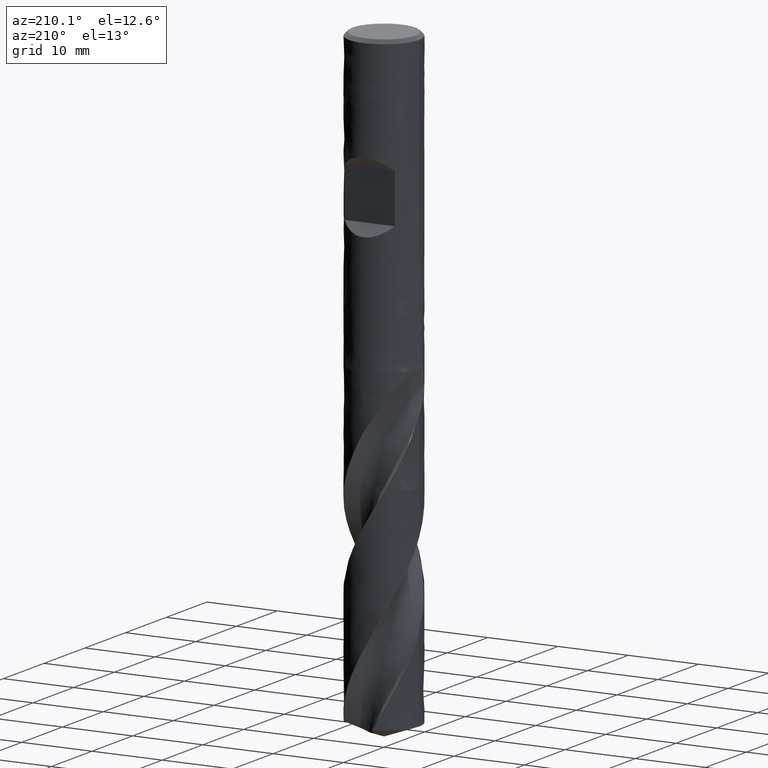
[diagram: clean part render]
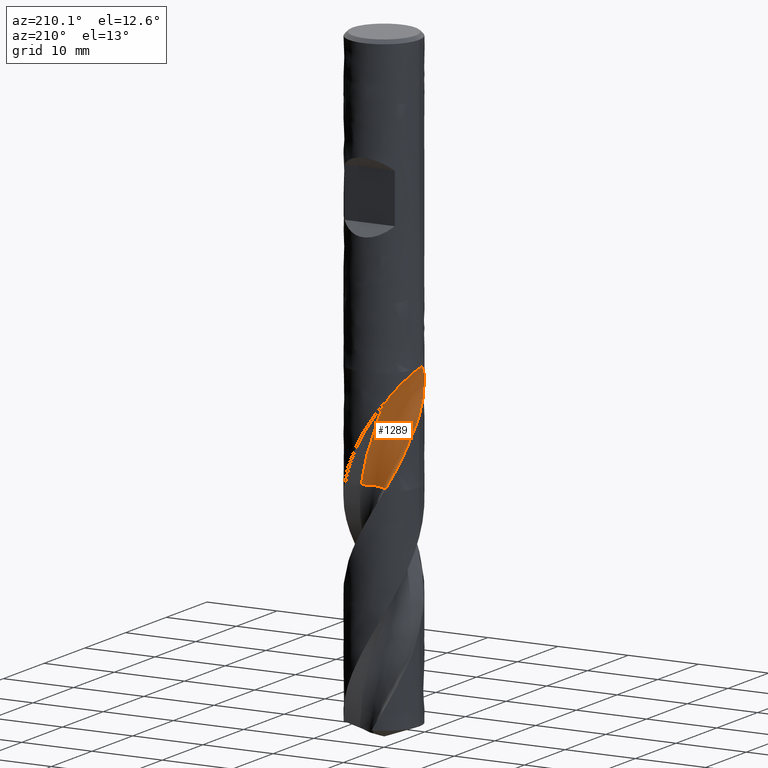
[diagram: same view with one face highlighted and labeled with its STEP entity id]
A machine part, auxiliary view. The second image highlights one B-rep face of the part: STEP entity #1289.
In plain terms, the highlighted face is a freeform B-spline surface patch.
Its self-contained STEP definition (entity closure, byte-faithful):
#1018 = EDGE_CURVE('', #1019, #1021, #1023, .T.);
#1019 = VERTEX_POINT('', #1020);
#1020 = CARTESIAN_POINT('', (-5., 2.87759123992862E-15, -41.9946312999325));
#1021 = VERTEX_POINT('', #1022);
#1022 = CARTESIAN_POINT('', (-4.99978048467422, 0.0468519484205006, -42.));
#1023 = CIRCLE('', #1024, 2.4787195018312);
#1024 = AXIS2_PLACEMENT_3D('', #1025, #1026, #1027);
#1025 = CARTESIAN_POINT('', (-3.78794759560581, -0.228330847429171, -44.144711355));
#1026 = DIRECTION('', (-0.872293151663816, -0.0516337401723768, -0.486249539265816));
#1027 = DIRECTION('', (-0.488983289639784, 0.0921164534614016, 0.867415645152166));
#1037 = EDGE_CURVE('', #1038, #1019, #1040, .T.);
#1038 = VERTEX_POINT('', #1039);
#1039 = CARTESIAN_POINT('', (-4.99295026095447, -0.265419840318413, -41.98));
#1040 = B_SPLINE_CURVE_WITH_KNOTS('', 3, (#1041, #1042, #1043, #1044, #1045, #1046, #1047), .UNSPECIFIED., .F., .U., (4, 3, 4), (0., 0.19653926357197, 0.266002509035877), .UNSPECIFIED.);
#1041 = CARTESIAN_POINT('', (-4.99295026095794, -0.265419840253592, -41.98));
#1042 = CARTESIAN_POINT('', (-4.9964279541477, -0.199999150139689, -41.9800602967663));
#1043 = CARTESIAN_POINT('', (-4.99861839882731, -0.134456077698584, -41.9829137811978));
#1044 = CARTESIAN_POINT('', (-4.99952166023377, -0.0691604572956124, -41.988170277714));
#1045 = CARTESIAN_POINT('', (-4.99984090162939, -0.0460829020766838, -41.9900280912681));
#1046 = CARTESIAN_POINT('', (-5., -0.0230250404152947, -41.9921870300973));
#1047 = CARTESIAN_POINT('', (-5., 2.48901318130981E-15, -41.9946312999325));
#1049 = EDGE_CURVE('', #1050, #1038, #1052, .T.);
#1050 = VERTEX_POINT('', #1051);
#1051 = CARTESIAN_POINT('', (-4.99272354253618, -0.269650936962821, -41.98));
#1052 = LINE('', #1053, #1054);
#1053 = CARTESIAN_POINT('', (-4.99272354253619, -0.269650936962821, -41.98));
#1054 = VECTOR('', #1055, 0.00423716651260086);
#1055 = DIRECTION('', (-0.00022671841828803, 0.00423109664440735, 0.));
#1057 = EDGE_CURVE('', #1050, #1058, #1060, .T.);
#1058 = VERTEX_POINT('', #1059);
#1059 = CARTESIAN_POINT('', (-4.96875036548665, -0.558139593180982, -42.));
#1060 = B_SPLINE_CURVE_WITH_KNOTS('', 3, (#1061, #1062, #1063, #1064, #1065, #1066, #1067), .UNSPECIFIED., .F., .U., (4, 3, 4), (0., 0.197902945999934, 0.290360140675007), .UNSPECIFIED.);
#1061 = CARTESIAN_POINT('', (-4.99272354253639, -0.269650936958994, -41.98));
#1062 = CARTESIAN_POINT('', (-4.98916589639201, -0.335522555509147, -41.9800607791115));
#1063 = CARTESIAN_POINT('', (-4.98429330861785, -0.401414698641258, -41.9829655562432));
#1064 = CARTESIAN_POINT('', (-4.97816157685433, -0.466805435627285, -41.9891448808512));
#1065 = CARTESIAN_POINT('', (-4.97529692663656, -0.497354976307015, -41.9920317657096));
#1066 = CARTESIAN_POINT('', (-4.97215596392127, -0.527821786178231, -41.9956356857761));
#1067 = CARTESIAN_POINT('', (-4.96875036548666, -0.558139593180976, -42.));
#1117 = VERTEX_POINT('', #1118);
#1118 = CARTESIAN_POINT('', (1.943946066787, 2.27613531000841, -57.));
#1124 = EDGE_CURVE('', #1117, #1125, #1127, .T.);
#1125 = VERTEX_POINT('', #1126);
#1126 = CARTESIAN_POINT('', (-3.11223655636923, 3.91330852568501, -44.9355207943384));
#1127 = (
   BOUNDED_CURVE ()
   B_SPLINE_CURVE (3, (#1128, #1129, #1130, #1131, #1132, #1133, #1134, #1135, #1136, #1137, #1138, #1139, #1140, #1141, #1142, #1143, #1144), .UNSPECIFIED., .F., .U.)
   B_SPLINE_CURVE_WITH_KNOTS ((4, 1, 1, 1, 1, 1, 1, 1, 1, 1, 1, 1, 1, 1, 4), (32.05, 32.3029411764706, 33.2258823529412, 34.1488235294118, 35.0717647058824, 35.9947058823529, 36.9176470588235, 37.8405882352941, 38.7635294117647, 39.6864705882353, 40.6094117647059, 41.5323529411765, 42.4552941176471, 43.3782352941177, 44.1144792056616), .UNSPECIFIED.)
   CURVE ()
   GEOMETRIC_REPRESENTATION_ITEM ()
   RATIONAL_B_SPLINE_CURVE ((1., 1., 1., 1., 1., 1., 1., 1., 1., 1., 1., 1., 1., 1., 1., 1., 1.))
   REPRESENTATION_ITEM ('')
);
#1128 = CARTESIAN_POINT('', (1.943946066787, 2.27613531000841, -57.));
#1129 = CARTESIAN_POINT('', (1.9224727124602, 2.2954026003362, -56.9156862745098));
#1130 = CARTESIAN_POINT('', (1.82133720913226, 2.38359132869679, -56.5237254901961));
#1131 = CARTESIAN_POINT('', (1.63028051500209, 2.52925399027171, -55.8241176470588));
#1132 = CARTESIAN_POINT('', (1.35856619870111, 2.69368816240262, -54.9011764705882));
#1133 = CARTESIAN_POINT('', (1.07153814504677, 2.83299067454781, -53.9782352941176));
#1134 = CARTESIAN_POINT('', (0.765589005447515, 2.92656808357513, -53.0552941176471));
#1135 = CARTESIAN_POINT('', (0.448979732801686, 2.96633694669324, -52.1323529411765));
#1136 = CARTESIAN_POINT('', (0.130692686243205, 2.95205794351342, -51.2094117647059));
#1137 = CARTESIAN_POINT('', (-0.174656198491371, 2.8856965353033, -50.2864705882353));
#1138 = CARTESIAN_POINT('', (-0.485176705606742, 2.92884247035536, -49.3635294117647));
#1139 = CARTESIAN_POINT('', (-0.838625774743411, 3.04763573265598, -48.4405882352941));
#1140 = CARTESIAN_POINT('', (-1.26617539191939, 3.23570710944644, -47.5176470588235));
#1141 = CARTESIAN_POINT('', (-1.79708044128408, 3.47032271734997, -46.5947058823529));
#1142 = CARTESIAN_POINT('', (-2.41141634031044, 3.70769795879561, -45.7339971275245));
#1143 = CARTESIAN_POINT('', (-2.88531623885215, 3.85325129579923, -45.1809354315197));
#1144 = CARTESIAN_POINT('', (-3.11223655636923, 3.91330852568501, -44.9355207943384));
#1289 = ADVANCED_FACE('', (#1290), #1607, .T.);
#1290 = FACE_OUTER_BOUND('', #1291, .T.);
#1291 = EDGE_LOOP('', (#1292, #1361, #1406, #1417, #1441, #1547, #1548, #1549, #1550, #1551, #1606));
#1292 = ORIENTED_EDGE('', *, *, #1293, .T.);
#1293 = EDGE_CURVE('', #1117, #1294, #1296, .T.);
#1294 = VERTEX_POINT('', #1295);
#1295 = CARTESIAN_POINT('', (-2.49888504584087, 4.33077054664328, -57.));
#1296 = B_SPLINE_CURVE_WITH_KNOTS('', 3, (#1297, #1298, #1299, #1300, #1301, #1302, #1303, #1304, #1305, #1306, #1307, #1308, #1309, #1310, #1311, #1312, #1313, #1314, #1315, #1316, #1317, #1318, #1319, #1320, #1321, #1322, #1323, #1324, #1325, #1326, #1327, #1328, #1329, #1330, #1331, #1332, #1333, #1334, #1335, #1336, #1337, #1338, #1339, #1340, #1341, #1342, #1343, #1344, #1345, #1346, #1347, #1348, #1349, #1350, #1351, #1352, #1353, #1354, #1355, #1356, #1357, #1358, #1359, #1360), .UNSPECIFIED., .F., .U., (4, 3, 3, 3, 3, 3, 3, 3, 3, 3, 3, 3, 3, 3, 3, 3, 3, 3, 3, 3, 3, 4), (0., 0.297376150028493, 0.594367108387545, 0.890982575190988, 1.18723009705755, 1.4831152333444, 1.77864167663977, 2.07381133312168, 2.36862436647171, 2.66307920740673, 2.8594675544147, 2.89837695632703, 3.1957271529752, 3.49269287368801, 3.78928366924074, 4.08550694952865, 4.38136814654139, 4.67687083203684, 4.97201679538179, 5.26680608513294, 5.56123701631977, 5.72273616709629), .UNSPECIFIED.);
#1297 = CARTESIAN_POINT('', (1.94394606678699, 2.27613531000841, -57.));
#1298 = CARTESIAN_POINT('', (1.85797356150517, 2.22679394847034, -57.));
#1299 = CARTESIAN_POINT('', (1.76944407261665, 2.18166372748891, -57.));
#1300 = CARTESIAN_POINT('', (1.67900884839017, 2.14107663789172, -57.));
#1301 = CARTESIAN_POINT('', (1.58869076501374, 2.1005421207984, -57.));
#1302 = CARTESIAN_POINT('', (1.49625085524377, 2.06443974368902, -57.));
#1303 = CARTESIAN_POINT('', (1.40236737624665, 2.03303439968234, -57.));
#1304 = CARTESIAN_POINT('', (1.30860259599298, 2.00166876207461, -57.));
#1305 = CARTESIAN_POINT('', (1.21316901361972, 1.97491169215684, -57.));
#1306 = CARTESIAN_POINT('', (1.11676508544159, 1.9529590187346, -57.));
#1307 = CARTESIAN_POINT('', (1.02048074420762, 1.931033577119, -57.));
#1308 = CARTESIAN_POINT('', (0.922994013113576, 1.9138472016576, -57.));
#1309 = CARTESIAN_POINT('', (0.825016609200674, 1.90152536415722, -57.));
#1310 = CARTESIAN_POINT('', (0.727159056411223, 1.88921859937779, -57.));
#1311 = CARTESIAN_POINT('', (0.628574330360891, 1.88173455580945, -57.));
#1312 = CARTESIAN_POINT('', (0.529980407622535, 1.87912773852789, -57.));
#1313 = CARTESIAN_POINT('', (0.431506007444631, 1.8765240814155, -57.));
#1314 = CARTESIAN_POINT('', (0.332783811336121, 1.87877949493969, -57.));
#1315 = CARTESIAN_POINT('', (0.234531058069737, 1.88587759301818, -57.));
#1316 = CARTESIAN_POINT('', (0.136396924600488, 1.89296712161718, -57.));
#1317 = CARTESIAN_POINT('', (0.0384938747297058, 1.90490475831692, -57.));
#1318 = CARTESIAN_POINT('', (-0.0584685173683535, 1.92160398243478, -57.));
#1319 = CARTESIAN_POINT('', (-0.155313759782545, 1.93828303059799, -57.));
#1320 = CARTESIAN_POINT('', (-0.25145416530008, 1.95975236130513, -57.));
#1321 = CARTESIAN_POINT('', (-0.346194614588102, 1.98585674589082, -57.));
#1322 = CARTESIAN_POINT('', (-0.440819955972163, 2.01192941412921, -57.));
#1323 = CARTESIAN_POINT('', (-0.534276387144739, 2.0426885754329, -57.));
#1324 = CARTESIAN_POINT('', (-0.625889832586888, 2.07791237243631, -57.));
#1325 = CARTESIAN_POINT('', (-0.686991946095894, 2.10140508611314, -57.));
#1326 = CARTESIAN_POINT('', (-0.747356968906936, 2.12691253730669, -57.));
#1327 = CARTESIAN_POINT('', (-0.806791029678776, 2.1543528050047, -57.));
#1328 = CARTESIAN_POINT('', (-0.81856639106394, 2.15978940254579, -57.));
#1329 = CARTESIAN_POINT('', (-0.830306741690077, 2.16530248202444, -57.));
#1330 = CARTESIAN_POINT('', (-0.842010600328535, 2.17089134787952, -57.));
#1331 = CARTESIAN_POINT('', (-0.931452855841193, 2.21360211389931, -57.));
#1332 = CARTESIAN_POINT('', (-1.01888280849404, 2.260808879436, -57.));
#1333 = CARTESIAN_POINT('', (-1.10365741057346, 2.3121644385067, -57.));
#1334 = CARTESIAN_POINT('', (-1.18832239848483, 2.36345359447146, -57.));
#1335 = CARTESIAN_POINT('', (-1.27054608158548, 2.41900629519376, -57.));
#1336 = CARTESIAN_POINT('', (-1.34972526432922, 2.47841500429976, -57.));
#1337 = CARTESIAN_POINT('', (-1.4288044817716, 2.53774870872267, -57.));
#1338 = CARTESIAN_POINT('', (-1.50503990875809, 2.60107348302777, -57.));
#1339 = CARTESIAN_POINT('', (-1.57787368847481, 2.66792594479263, -57.));
#1340 = CARTESIAN_POINT('', (-1.65061721749514, 2.73469556750598, -57.));
#1341 = CARTESIAN_POINT('', (-1.7201446487521, 2.80514667902639, -57.));
#1342 = CARTESIAN_POINT('', (-1.78594846933808, 2.8787650240764, -57.));
#1343 = CARTESIAN_POINT('', (-1.85167185579055, 2.95229338304746, -57.));
#1344 = CARTESIAN_POINT('', (-1.913840372072, 3.02915979542361, -57.));
#1345 = CARTESIAN_POINT('', (-1.97200132808736, 3.10880454600478, -57.));
#1346 = CARTESIAN_POINT('', (-2.03009180722775, 3.18835278659862, -57.));
#1347 = CARTESIAN_POINT('', (-2.08432519739078, 3.27086534887041, -57.));
#1348 = CARTESIAN_POINT('', (-2.13430754413501, 3.35574285685854, -57.));
#1349 = CARTESIAN_POINT('', (-2.18422955366035, 3.44051790321548, -57.));
#1350 = CARTESIAN_POINT('', (-2.23003146101638, 3.52785707251577, -57.));
#1351 = CARTESIAN_POINT('', (-2.27138135986519, 3.6171274560988, -57.));
#1352 = CARTESIAN_POINT('', (-2.31268128880468, 3.70628995953951, -57.));
#1353 = CARTESIAN_POINT('', (-2.34963956826356, 3.79759398341439, -57.));
#1354 = CARTESIAN_POINT('', (-2.38198902354078, 3.89037948278519, -57.));
#1355 = CARTESIAN_POINT('', (-2.4142991534261, 3.98305218810443, -57.));
#1356 = CARTESIAN_POINT('', (-2.44208939980682, 4.07742566514548, -57.));
#1357 = CARTESIAN_POINT('', (-2.46515935177571, 4.17281933433032, -57.));
#1358 = CARTESIAN_POINT('', (-2.47781351700357, 4.22514398819976, -57.));
#1359 = CARTESIAN_POINT('', (-2.48906530015115, 4.27784068838955, -57.));
#1360 = CARTESIAN_POINT('', (-2.49888504584086, 4.33077054664328, -57.));
#1361 = ORIENTED_EDGE('', *, *, #1362, .F.);
#1362 = EDGE_CURVE('', #1363, #1294, #1365, .T.);
#1363 = VERTEX_POINT('', #1364);
#1364 = CARTESIAN_POINT('', (-4.50780912676407, 2.16325145941534, -51.7296097801275));
#1365 = B_SPLINE_CURVE_WITH_KNOTS('', 3, (#1366, #1367, #1368, #1369, #1370, #1371, #1372, #1373, #1374, #1375, #1376, #1377, #1378, #1379, #1380, #1381, #1382, #1383, #1384, #1385, #1386, #1387, #1388, #1389, #1390, #1391, #1392, #1393, #1394, #1395, #1396, #1397, #1398, #1399, #1400, #1401, #1402, #1403, #1404, #1405), .UNSPECIFIED., .F., .U., (4, 3, 3, 3, 3, 3, 3, 3, 3, 3, 3, 3, 3, 4), (0., 0.443538132250709, 1.10877140988273, 1.5522265696646, 1.99566824933686, 2.43907652097612, 2.63613322609805, 3.07951469221298, 3.52290078920543, 3.71995041273082, 4.38489248373351, 4.82818440142817, 5.82515596379439, 6.06441392951672), .UNSPECIFIED.);
#1366 = CARTESIAN_POINT('', (-4.50780912676406, 2.16325145941536, -51.7296097801276));
#1367 = CARTESIAN_POINT('', (-4.47728715469652, 2.22685350792159, -51.8595391509337));
#1368 = CARTESIAN_POINT('', (-4.44526179943292, 2.29013382638888, -51.9892820820056));
#1369 = CARTESIAN_POINT('', (-4.41176936778985, 2.35293243537327, -52.1188700617083));
#1370 = CARTESIAN_POINT('', (-4.36153630222517, 2.44711988273755, -52.3132304339312));
#1371 = CARTESIAN_POINT('', (-4.30799600455277, 2.54024081010484, -52.5072855114029));
#1372 = CARTESIAN_POINT('', (-4.25117125581793, 2.63202259749178, -52.7009802243998));
#1373 = CARTESIAN_POINT('', (-4.21329096798947, 2.69320580729094, -52.8301002230365));
#1374 = CARTESIAN_POINT('', (-4.17394560455745, 2.75380393083671, -52.959077687096));
#1375 = CARTESIAN_POINT('', (-4.1331395218874, 2.81374442560316, -53.0878886964062));
#1376 = CARTESIAN_POINT('', (-4.09233467963693, 2.87368309830391, -53.2166957901311));
#1377 = CARTESIAN_POINT('', (-4.05006540648035, 2.93296824575027, -53.3453532858913));
#1378 = CARTESIAN_POINT('', (-4.00637533614076, 2.99148068119507, -53.4738695093111));
#1379 = CARTESIAN_POINT('', (-3.96268855732603, 3.04998870842688, -53.6023760505689));
#1380 = CARTESIAN_POINT('', (-3.91757592489738, 3.10773105487844, -53.7307568283362));
#1381 = CARTESIAN_POINT('', (-3.87109441753695, 3.16458970650454, -53.8590230290617));
#1382 = CARTESIAN_POINT('', (-3.85043739944461, 3.18985846954698, -53.9160262843235));
#1383 = CARTESIAN_POINT('', (-3.82950946897326, 3.21495364979099, -53.9730092279596));
#1384 = CARTESIAN_POINT('', (-3.80831625944781, 3.2398653163404, -54.0299728183692));
#1385 = CARTESIAN_POINT('', (-3.76063112077027, 3.29591705652966, -54.1581420182721));
#1386 = CARTESIAN_POINT('', (-3.71159436807, 3.3510480939713, -54.286221496742));
#1387 = CARTESIAN_POINT('', (-3.66129008778324, 3.40513654544135, -54.4142329518352));
#1388 = CARTESIAN_POINT('', (-3.61098528209571, 3.45922556183577, -54.5422457439383));
#1389 = CARTESIAN_POINT('', (-3.55940624068417, 3.51227798560213, -54.6702062819506));
#1390 = CARTESIAN_POINT('', (-3.50668851434368, 3.56414585326838, -54.79816735316));
#1391 = CARTESIAN_POINT('', (-3.48325970545911, 3.5871969680102, -54.8550358050098));
#1392 = CARTESIAN_POINT('', (-3.4596068905287, 3.6100137412094, -54.9119078816351));
#1393 = CARTESIAN_POINT('', (-3.43574161781926, 3.63258579190977, -54.9687870085453));
#1394 = CARTESIAN_POINT('', (-3.35520848318774, 3.7087549612335, -55.1607250786003));
#1395 = CARTESIAN_POINT('', (-3.27222864866353, 3.78216450503793, -55.3527668452792));
#1396 = CARTESIAN_POINT('', (-3.18694996933047, 3.85270682676279, -55.5448055876266));
#1397 = CARTESIAN_POINT('', (-3.13009787506756, 3.89973474459161, -55.6728306082701));
#1398 = CARTESIAN_POINT('', (-3.07221197704725, 3.94549848442978, -55.8008713394425));
#1399 = CARTESIAN_POINT('', (-3.0133293322908, 3.98996821229893, -55.9288927010892));
#1400 = CARTESIAN_POINT('', (-2.88090119634736, 4.08998143677247, -56.2168150652076));
#1401 = CARTESIAN_POINT('', (-2.74338812163385, 4.1834635258339, -56.5047856891781));
#1402 = CARTESIAN_POINT('', (-2.60165714937276, 4.26982201937242, -56.7926983254312));
#1403 = CARTESIAN_POINT('', (-2.56764387819926, 4.29054674038435, -56.8617929658964));
#1404 = CARTESIAN_POINT('', (-2.53337905418993, 4.31086726137193, -56.9309021806323));
#1405 = CARTESIAN_POINT('', (-2.49888504584087, 4.33077054664328, -57.));
#1406 = ORIENTED_EDGE('', *, *, #1407, .T.);
#1407 = EDGE_CURVE('', #1363, #1408, #1410, .T.);
#1408 = VERTEX_POINT('', #1409);
#1409 = CARTESIAN_POINT('', (-4.91576224831516, 0.913937370961217, -49.4225273780345));
#1410 = B_SPLINE_CURVE_WITH_KNOTS('', 3, (#1411, #1412, #1413, #1414, #1415, #1416), .UNSPECIFIED., .F., .U., (4, 1, 1, 4), (37.3203902198726, 37.8405882352941, 38.7635294117647, 39.6274726219655), .UNSPECIFIED.);
#1411 = CARTESIAN_POINT('', (-4.50780912676409, 2.16325145941525, -51.7296097801274));
#1412 = CARTESIAN_POINT('', (-4.53828612816253, 2.06788350924136, -51.5562104416535));
#1413 = CARTESIAN_POINT('', (-4.61007503793983, 1.79998907979213, -51.0751640443562));
#1414 = CARTESIAN_POINT('', (-4.66635569368079, 1.36588307517593, -50.3061365769919));
#1415 = CARTESIAN_POINT('', (-4.82009380267054, 1.06321777797297, -49.7105084481014));
#1416 = CARTESIAN_POINT('', (-4.91576224831516, 0.913937370961217, -49.4225273780345));
#1417 = ORIENTED_EDGE('', *, *, #1418, .T.);
#1418 = EDGE_CURVE('', #1408, #1419, #1421, .T.);
#1419 = VERTEX_POINT('', #1420);
#1420 = CARTESIAN_POINT('', (-5., 3.24936843576135E-15, -48.0662136711367));
#1421 = B_SPLINE_CURVE_WITH_KNOTS('', 3, (#1422, #1423, #1424, #1425, #1426, #1427, #1428, #1429, #1430, #1431, #1432, #1433, #1434, #1435, #1436, #1437, #1438, #1439, #1440), .UNSPECIFIED., .F., .U., (4, 3, 3, 3, 3, 3, 4), (0., 0.295344221535339, 0.590609700820742, 0.885783969001286, 1.18085766597472, 1.47582557977458, 1.63840001026281), .UNSPECIFIED.);
#1422 = CARTESIAN_POINT('', (-4.91576224831516, 0.913937370961214, -49.4225273780345));
#1423 = CARTESIAN_POINT('', (-4.92561953914816, 0.860918313324287, -49.3401633289078));
#1424 = CARTESIAN_POINT('', (-4.93470176601981, 0.807287581822046, -49.2580943885015));
#1425 = CARTESIAN_POINT('', (-4.94294531353319, 0.75318764422969, -49.1762575757537));
#1426 = CARTESIAN_POINT('', (-4.95118666321966, 0.699102130318236, -49.0944425816647));
#1427 = CARTESIAN_POINT('', (-4.95859046979684, 0.644542575813345, -49.012851079877));
#1428 = CARTESIAN_POINT('', (-4.9651083648658, 0.589660008089094, -48.9314122886201));
#1429 = CARTESIAN_POINT('', (-4.97162424647755, 0.534794394258849, -48.8499986547983));
#1430 = CARTESIAN_POINT('', (-4.97725530847013, 0.479600895338787, -48.7687298678894));
#1431 = CARTESIAN_POINT('', (-4.98196981638965, 0.424236665772803, -48.6875298213017));
#1432 = CARTESIAN_POINT('', (-4.98668271799112, 0.368891299800291, -48.6063574410371));
#1433 = CARTESIAN_POINT('', (-4.99048006392093, 0.313370354588412, -48.5252463569579));
#1434 = CARTESIAN_POINT('', (-4.99334761577889, 0.257836358951502, -48.444116653588));
#1435 = CARTESIAN_POINT('', (-4.99621413962676, 0.202322272111479, -48.3630160350114));
#1436 = CARTESIAN_POINT('', (-4.99815169850873, 0.146791157768965, -48.2818888222904));
#1437 = CARTESIAN_POINT('', (-4.99916434264602, 0.0914104765203469, -48.2006527722483));
#1438 = CARTESIAN_POINT('', (-4.99972247129733, 0.0608868761800292, -48.155878734284));
#1439 = CARTESIAN_POINT('', (-5., 0.0304076566182313, -48.1110700037993));
#1440 = CARTESIAN_POINT('', (-5., 3.7760467461005E-15, -48.0662136711367));
#1441 = ORIENTED_EDGE('', *, *, #1442, .T.);
#1442 = EDGE_CURVE('', #1419, #1058, #1443, .T.);
#1443 = B_SPLINE_CURVE_WITH_KNOTS('', 3, (#1444, #1445, #1446, #1447, #1448, #1449, #1450, #1451, #1452, #1453, #1454, #1455, #1456, #1457, #1458, #1459, #1460, #1461, #1462, #1463, #1464, #1465, #1466, #1467, #1468, #1469, #1470, #1471, #1472, #1473, #1474, #1475, #1476, #1477, #1478, #1479, #1480, #1481, #1482, #1483, #1484, #1485, #1486, #1487, #1488, #1489, #1490, #1491, #1492, #1493, #1494, #1495, #1496, #1497, #1498, #1499, #1500, #1501, #1502, #1503, #1504, #1505, #1506, #1507, #1508, #1509, #1510, #1511, #1512, #1513, #1514, #1515, #1516, #1517, #1518, #1519, #1520, #1521, #1522, #1523, #1524, #1525, #1526, #1527, #1528, #1529, #1530, #1531, #1532, #1533, #1534, #1535, #1536, #1537, #1538, #1539, #1540, #1541, #1542, #1543, #1544, #1545, #1546), .UNSPECIFIED., .F., .U., (4, 3, 3, 3, 3, 3, 3, 3, 3, 3, 3, 3, 3, 3, 3, 3, 3, 3, 3, 3, 3, 3, 3, 3, 3, 3, 3, 3, 3, 3, 3, 3, 3, 3, 4), (0., 0.295451357360026, 0.590786006894102, 0.885998927559421, 1.18108102646886, 1.4760357835589, 1.77086898047036, 2.06558580370869, 2.36019741304354, 2.65472365489557, 2.9491878066916, 3.24361499014711, 3.53804868161623, 3.83254531992888, 4.12717625942395, 4.42204375447657, 4.71729020582589, 4.91439283377321, 5.11171192689675, 5.19937735551527, 5.23832153220058, 5.4362288989911, 5.6345813018107, 5.76669215463042, 5.89894523375694, 6.03132876130446, 6.16381463109725, 6.29635680792945, 6.42889453870964, 6.5613610884818, 6.69369555637125, 6.82585305255951, 6.95780942561792, 7.08956002976529, 7.15900999779905), .UNSPECIFIED.);
#1444 = CARTESIAN_POINT('', (-5., 3.7760467461005E-15, -48.0662136711367));
#1445 = CARTESIAN_POINT('', (-5., -0.055260740542116, -47.9846949210383));
#1446 = CARTESIAN_POINT('', (-4.99908239379171, -0.11028895294842, -47.9030125154242));
#1447 = CARTESIAN_POINT('', (-4.99727920882698, -0.164925768229708, -47.821094123089));
#1448 = CARTESIAN_POINT('', (-4.99547673614802, -0.219541001129431, -47.7392080897775));
#1449 = CARTESIAN_POINT('', (-4.99278925324291, -0.27377085227703, -47.6570779239109));
#1450 = CARTESIAN_POINT('', (-4.9892654321278, -0.327460604920414, -47.5746377142448));
#1451 = CARTESIAN_POINT('', (-4.98574306343541, -0.381128228115516, -47.4922314841795));
#1452 = CARTESIAN_POINT('', (-4.98138448989511, -0.434263716161731, -47.4095070914651));
#1453 = CARTESIAN_POINT('', (-4.97625542914371, -0.486705150905317, -47.3263987508967));
#1454 = CARTESIAN_POINT('', (-4.97112864130344, -0.539123346555714, -47.2433272392686));
#1455 = CARTESIAN_POINT('', (-4.96523148295487, -0.590854380136812, -47.1598613459527));
#1456 = CARTESIAN_POINT('', (-4.95864613362498, -0.641738670711115, -47.075943234797));
#1457 = CARTESIAN_POINT('', (-4.95206362618339, -0.692601002318186, -46.9920613382576));
#1458 = CARTESIAN_POINT('', (-4.9447925882244, -0.742624863027512, -46.9077155596396));
#1459 = CARTESIAN_POINT('', (-4.93693100092006, -0.791651622972135, -46.8228565530336));
#1460 = CARTESIAN_POINT('', (-4.92907265362435, -0.840658177439305, -46.7380325195064));
#1461 = CARTESIAN_POINT('', (-4.92062290048665, -0.888676933421102, -46.652681624571));
#1462 = CARTESIAN_POINT('', (-4.91169557264698, -0.935546151528668, -46.5667625237935));
#1463 = CARTESIAN_POINT('', (-4.90277176851475, -0.982396869877302, -46.4808773361624));
#1464 = CARTESIAN_POINT('', (-4.89336918323434, -1.02810721712237, -46.3944069769878));
#1465 = CARTESIAN_POINT('', (-4.88361841786848, -1.07250694573786, -46.3073180786249));
#1466 = CARTESIAN_POINT('', (-4.87387113352578, -1.11689082365061, -46.2202602709981));
#1467 = CARTESIAN_POINT('', (-4.86377365084404, -1.15997561903384, -46.1325642654077));
#1468 = CARTESIAN_POINT('', (-4.85347201745639, -1.20158619156861, -46.0442102239478));
#1469 = CARTESIAN_POINT('', (-4.84317336909881, -1.24318470690765, -45.9558817842017));
#1470 = CARTESIAN_POINT('', (-4.83266777334176, -1.28332181089046, -45.8668712629852));
#1471 = CARTESIAN_POINT('', (-4.82211751444927, -1.32181037854964, -45.7771732468352));
#1472 = CARTESIAN_POINT('', (-4.81156947969193, -1.36029083230595, -45.6874941402222));
#1473 = CARTESIAN_POINT('', (-4.80097297647554, -1.39713745425029, -45.5970979492058));
#1474 = CARTESIAN_POINT('', (-4.79050919775144, -1.43213882925465, -45.5059949217915));
#1475 = CARTESIAN_POINT('', (-4.7800467326967, -1.46713581003057, -45.4149033318568));
#1476 = CARTESIAN_POINT('', (-4.76971278340204, -1.50030236880095, -45.3230670913314));
#1477 = CARTESIAN_POINT('', (-4.75970705479692, -1.53140091175251, -45.2305214506094));
#1478 = CARTESIAN_POINT('', (-4.74970110502534, -1.56250014210576, -45.13797376426));
#1479 = CARTESIAN_POINT('', (-4.7400181190832, -1.59154822533851, -45.0446687104994));
#1480 = CARTESIAN_POINT('', (-4.73087799327417, -1.61826864665733, -44.9506749203176));
#1481 = CARTESIAN_POINT('', (-4.72173591340184, -1.64499478052275, -44.8566610352465));
#1482 = CARTESIAN_POINT('', (-4.71313080611152, -1.6694110150929, -44.7618959612091));
#1483 = CARTESIAN_POINT('', (-4.7053064111772, -1.69118052760039, -44.6664950093741));
#1484 = CARTESIAN_POINT('', (-4.6974784480341, -1.71295996779768, -44.5710505512338));
#1485 = CARTESIAN_POINT('', (-4.6904255631504, -1.73210954386456, -44.4748871168483));
#1486 = CARTESIAN_POINT('', (-4.68441582449413, -1.748212911298, -44.3781925967835));
#1487 = CARTESIAN_POINT('', (-4.6784012606926, -1.76432920792708, -44.2814204418778));
#1488 = CARTESIAN_POINT('', (-4.6734249971781, -1.77741464573348, -44.1840045538062));
#1489 = CARTESIAN_POINT('', (-4.66977986445303, -1.78694040682643, -44.0862460102263));
#1490 = CARTESIAN_POINT('', (-4.66613004709497, -1.79647841018823, -43.9883618298222));
#1491 = CARTESIAN_POINT('', (-4.66381020360493, -1.80246439446553, -43.8899777217676));
#1492 = CARTESIAN_POINT('', (-4.66313430400298, -1.80421131324206, -43.7915800648708));
#1493 = CARTESIAN_POINT('', (-4.66268308236369, -1.80537753312409, -43.725891089882));
#1494 = CARTESIAN_POINT('', (-4.66296442794143, -1.80465292175398, -43.6601236590583));
#1495 = CARTESIAN_POINT('', (-4.66407068796275, -1.80178928226546, -43.5944945430921));
#1496 = CARTESIAN_POINT('', (-4.6651781629185, -1.79892249782534, -43.5287933508766));
#1497 = CARTESIAN_POINT('', (-4.66711448292414, -1.79390801941394, -43.4631479434718));
#1498 = CARTESIAN_POINT('', (-4.66996339965697, -1.7864607037, -43.3978600213541));
#1499 = CARTESIAN_POINT('', (-4.67122912362989, -1.78315199133069, -43.3688537372411));
#1500 = CARTESIAN_POINT('', (-4.67267532905241, -1.77936124033117, -43.3399051151583));
#1501 = CARTESIAN_POINT('', (-4.67430816669481, -1.77506145323767, -43.3110475368651));
#1502 = CARTESIAN_POINT('', (-4.67503353265317, -1.77315133118709, -43.2982279494237));
#1503 = CARTESIAN_POINT('', (-4.67579579283901, -1.77114053976073, -43.2854249651785));
#1504 = CARTESIAN_POINT('', (-4.67659541753776, -1.76902665346366, -43.2726418267042));
#1505 = CARTESIAN_POINT('', (-4.68065896777862, -1.75828425995697, -43.2076801946941));
#1506 = CARTESIAN_POINT('', (-4.68569706281161, -1.74486370915297, -43.1431393305039));
#1507 = CARTESIAN_POINT('', (-4.69174737452456, -1.7284405033561, -43.0795343218037));
#1508 = CARTESIAN_POINT('', (-4.69781129162645, -1.7119803665525, -43.0157862839634));
#1509 = CARTESIAN_POINT('', (-4.70491000543491, -1.69245717145125, -42.9528154723819));
#1510 = CARTESIAN_POINT('', (-4.71301688516334, -1.66957235247988, -42.8913168294341));
#1511 = CARTESIAN_POINT('', (-4.71841640026579, -1.65433012244911, -42.8503562055566));
#1512 = CARTESIAN_POINT('', (-4.72427112744341, -1.63757077937959, -42.8099792286881));
#1513 = CARTESIAN_POINT('', (-4.73054859356582, -1.61923130031272, -42.7704379847178));
#1514 = CARTESIAN_POINT('', (-4.73683281780691, -1.6008720775509, -42.7308541719125));
#1515 = CARTESIAN_POINT('', (-4.74355198946985, -1.58089601624031, -42.6920397517219));
#1516 = CARTESIAN_POINT('', (-4.75064758431671, -1.55927788723685, -42.6542807818856));
#1517 = CARTESIAN_POINT('', (-4.75775017793554, -1.53763843509436, -42.6164845683192));
#1518 = CARTESIAN_POINT('', (-4.76524451152623, -1.51430843958245, -42.5796706308556));
#1519 = CARTESIAN_POINT('', (-4.77304208437651, -1.48931838797844, -42.5441465310982));
#1520 = CARTESIAN_POINT('', (-4.78084568532657, -1.46430901721866, -42.5085949685877));
#1521 = CARTESIAN_POINT('', (-4.78897078277155, -1.43757849652983, -42.4742553740803));
#1522 = CARTESIAN_POINT('', (-4.79729879441653, -1.40922825585132, -42.4414348547968));
#1523 = CARTESIAN_POINT('', (-4.80563034550069, -1.38086596620396, -42.4086003866576));
#1524 = CARTESIAN_POINT('', (-4.81418540997192, -1.35081087766649, -42.3772055997434));
#1525 = CARTESIAN_POINT('', (-4.82282090738811, -1.31924163641847, -42.3475282058739));
#1526 = CARTESIAN_POINT('', (-4.83145611513146, -1.28767345414271, -42.3178518075156));
#1527 = CARTESIAN_POINT('', (-4.84019373142236, -1.25450836839089, -42.2898156971256));
#1528 = CARTESIAN_POINT('', (-4.84887750244409, -1.2199946583045, -42.2636393432657));
#1529 = CARTESIAN_POINT('', (-4.85755660974048, -1.18549948422789, -42.2374770477365));
#1530 = CARTESIAN_POINT('', (-4.86620405477355, -1.14956692290235, -42.2131035506156));
#1531 = CARTESIAN_POINT('', (-4.87466489758374, -1.11249365673019, -42.1906603619014));
#1532 = CARTESIAN_POINT('', (-4.8831173041204, -1.07545735616786, -42.1682395512035));
#1533 = CARTESIAN_POINT('', (-4.89140431059103, -1.03718986742239, -42.147687466516));
#1534 = CARTESIAN_POINT('', (-4.89938575334975, -0.998007635177957, -42.1290629467695));
#1535 = CARTESIAN_POINT('', (-4.90735652247578, -0.958877801574696, -42.1104633337083));
#1536 = CARTESIAN_POINT('', (-4.91504091315733, -0.918745150679879, -42.093741074152));
#1537 = CARTESIAN_POINT('', (-4.92232251602026, -0.87791858864017, -42.0788819780803));
#1538 = CARTESIAN_POINT('', (-4.92959303741752, -0.837154158270439, -42.0640454952389));
#1539 = CARTESIAN_POINT('', (-4.93647720848416, -0.795613470624457, -42.0510337948407));
#1540 = CARTESIAN_POINT('', (-4.94288576978089, -0.753578308405665, -42.039777864528));
#1541 = CARTESIAN_POINT('', (-4.94928433775446, -0.711608694590141, -42.028539486384));
#1542 = CARTESIAN_POINT('', (-4.9552206487442, -0.669070124132917, -42.0190294181335));
#1543 = CARTESIAN_POINT('', (-4.96063146834725, -0.626207182364817, -42.0111438266242));
#1544 = CARTESIAN_POINT('', (-4.96348368485814, -0.603612751357138, -42.0069870784879));
#1545 = CARTESIAN_POINT('', (-4.96619222273476, -0.580913058616461, -42.0032782898551));
#1546 = CARTESIAN_POINT('', (-4.96875036548666, -0.558139593180977, -42.));
#1547 = ORIENTED_EDGE('', *, *, #1057, .F.);
#1548 = ORIENTED_EDGE('', *, *, #1049, .T.);
#1549 = ORIENTED_EDGE('', *, *, #1037, .T.);
#1550 = ORIENTED_EDGE('', *, *, #1018, .T.);
#1551 = ORIENTED_EDGE('', *, *, #1552, .F.);
#1552 = EDGE_CURVE('', #1125, #1021, #1553, .T.);
#1553 = B_SPLINE_CURVE_WITH_KNOTS('', 3, (#1554, #1555, #1556, #1557, #1558, #1559, #1560, #1561, #1562, #1563, #1564, #1565, #1566, #1567, #1568, #1569, #1570, #1571, #1572, #1573, #1574, #1575, #1576, #1577, #1578, #1579, #1580, #1581, #1582, #1583, #1584, #1585, #1586, #1587, #1588, #1589, #1590, #1591, #1592, #1593, #1594, #1595, #1596, #1597, #1598, #1599, #1600, #1601, #1602, #1603, #1604, #1605), .UNSPECIFIED., .F., .U., (4, 3, 3, 3, 3, 3, 3, 3, 3, 3, 3, 3, 3, 3, 3, 3, 3, 4), (0., 0.447767069739203, 0.895766207094669, 1.3439429688872, 1.79224359108956, 2.24058995543152, 2.68891917858524, 2.98662818473219, 3.28428462520408, 3.58186437427631, 3.87933674741077, 4.17666186537461, 4.4737869052673, 4.77064083524864, 4.96806335505841, 5.1653385111915, 5.36243252669375, 5.43380457491011), .UNSPECIFIED.);
#1554 = CARTESIAN_POINT('', (-3.11223655636923, 3.91330852568501, -44.9355207943384));
#1555 = CARTESIAN_POINT('', (-3.18764534916055, 3.85333625412594, -44.821529121023));
#1556 = CARTESIAN_POINT('', (-3.26309862559995, 3.78976740507964, -44.7093809114196));
#1557 = CARTESIAN_POINT('', (-3.3381036922315, 3.72250772194101, -44.5992553649959));
#1558 = CARTESIAN_POINT('', (-3.4131476323046, 3.65521317961914, -44.4890727429747));
#1559 = CARTESIAN_POINT('', (-3.4878000596427, 3.58417196834745, -44.3808225886282));
#1560 = CARTESIAN_POINT('', (-3.56153939450857, 3.50933571226287, -44.2746981153327));
#1561 = CARTESIAN_POINT('', (-3.63530796583218, 3.43446978480897, -44.168531565394));
#1562 = CARTESIAN_POINT('', (-3.70822815581825, 3.35573904456046, -44.0643975307802));
#1563 = CARTESIAN_POINT('', (-3.77976119401912, 3.2731338677462, -43.9625277376923));
#1564 = CARTESIAN_POINT('', (-3.85131400145432, 3.19050586174505, -43.8606297913501));
#1565 = CARTESIAN_POINT('', (-3.92155149938022, 3.10391654578574, -43.7608992752115));
#1566 = CARTESIAN_POINT('', (-3.98990765193207, 3.0134095189758, -43.6636043750231));
#1567 = CARTESIAN_POINT('', (-4.05827077917125, 2.92289325732467, -43.5662995473961));
#1568 = CARTESIAN_POINT('', (-4.12482646552395, 2.82835943957881, -43.4713182621919));
#1569 = CARTESIAN_POINT('', (-4.18898903840309, 2.72990308182154, -43.3789903134036));
#1570 = CARTESIAN_POINT('', (-4.25314915821731, 2.63145048824996, -43.2866658944996));
#1571 = CARTESIAN_POINT('', (-4.31499764703136, 2.52895027807034, -43.19687632255));
#1572 = CARTESIAN_POINT('', (-4.3739292589054, 2.42254883089924, -43.1100487368221));
#1573 = CARTESIAN_POINT('', (-4.4130622680772, 2.35189390265905, -43.0523916560024));
#1574 = CARTESIAN_POINT('', (-4.45094006460147, 2.27946439408717, -42.9959965060637));
#1575 = CARTESIAN_POINT('', (-4.4873789299744, 2.20531864791052, -42.9410195320259));
#1576 = CARTESIAN_POINT('', (-4.52381136143528, 2.13118599344799, -42.8860522651239));
#1577 = CARTESIAN_POINT('', (-4.55883141122369, 2.05528444351045, -42.8324629450123));
#1578 = CARTESIAN_POINT('', (-4.59224902063273, 1.97768777427018, -42.7804399380376));
#1579 = CARTESIAN_POINT('', (-4.62565801997026, 1.90011109786851, -42.7284303348287));
#1580 = CARTESIAN_POINT('', (-4.6574922258549, 1.82077743213662, -42.6779438390165));
#1581 = CARTESIAN_POINT('', (-4.68755427977518, 1.7397801223607, -42.629209769749));
#1582 = CARTESIAN_POINT('', (-4.71760548638061, 1.65881203890856, -42.5804932852345));
#1583 = CARTESIAN_POINT('', (-4.74591323880384, 1.57610681827923, -42.5334825525517));
#1584 = CARTESIAN_POINT('', (-4.77227212941873, 1.49178373860733, -42.4884600188602));
#1585 = CARTESIAN_POINT('', (-4.79861797182045, 1.40750240065871, -42.4434597722833));
#1586 = CARTESIAN_POINT('', (-4.82304458006555, 1.32151467090965, -42.4003969837333));
#1587 = CARTESIAN_POINT('', (-4.84533832344783, 1.23397590386839, -42.3596241643416));
#1588 = CARTESIAN_POINT('', (-4.86761706477039, 1.14649604401862, -42.318878782077));
#1589 = CARTESIAN_POINT('', (-4.88779321977689, 1.05735655696326, -42.2803678735103));
#1590 = CARTESIAN_POINT('', (-4.90564616154125, 0.966765606419476, -42.2445376276268));
#1591 = CARTESIAN_POINT('', (-4.92348281349894, 0.87625731503017, -42.2087400748304));
#1592 = CARTESIAN_POINT('', (-4.93902655631516, 0.784161270956829, -42.1755622768118));
#1593 = CARTESIAN_POINT('', (-4.95205422494627, 0.69076693116548, -42.1455766320053));
#1594 = CARTESIAN_POINT('', (-4.96071826779241, 0.628655084107445, -42.1256346977477));
#1595 = CARTESIAN_POINT('', (-4.96827852573402, 0.56590810025658, -42.1070865646695));
#1596 = CARTESIAN_POINT('', (-4.97467096543253, 0.502641806540754, -42.0901413376276));
#1597 = CARTESIAN_POINT('', (-4.98105863357095, 0.439422737192547, -42.0732087591476));
#1598 = CARTESIAN_POINT('', (-4.98628609841145, 0.375622710758616, -42.0578598873718));
#1599 = CARTESIAN_POINT('', (-4.99029399848184, 0.3113933344118, -42.0443436305451));
#1600 = CARTESIAN_POINT('', (-4.99429821844593, 0.247222934319157, -42.0308397845223));
#1601 = CARTESIAN_POINT('', (-4.99708922349242, 0.182547810705558, -42.0191492317144));
#1602 = CARTESIAN_POINT('', (-4.99861753099287, 0.117570314496146, -42.0095671053576));
#1603 = CARTESIAN_POINT('', (-4.99917096452222, 0.094040543789418, -42.0060972080976));
#1604 = CARTESIAN_POINT('', (-4.99955922252003, 0.0704638202384412, -42.0029029532359));
#1605 = CARTESIAN_POINT('', (-4.99978048467422, 0.0468519484204953, -42.));
#1606 = ORIENTED_EDGE('', *, *, #1124, .F.);
#1607 = (
   BOUNDED_SURFACE ()
   B_SPLINE_SURFACE (3, 2, ((#1608, #1609, #1610, #1611, #1612), (#1613, #1614, #1615, #1616, #1617), (#1618, #1619, #1620, #1621, #1622), (#1623, #1624, #1625, #1626, #1627), (#1628, #1629, #1630, #1631, #1632), (#1633, #1634, #1635, #1636, #1637), (#1638, #1639, #1640, #1641, #1642), (#1643, #1644, #1645, #1646, #1647), (#1648, #1649, #1650, #1651, #1652), (#1653, #1654, #1655, #1656, #1657), (#1658, #1659, #1660, #1661, #1662), (#1663, #1664, #1665, #1666, #1667), (#1668, #1669, #1670, #1671, #1672), (#1673, #1674, #1675, #1676, #1677), (#1678, #1679, #1680, #1681, #1682), (#1683, #1684, #1685, #1686, #1687), (#1688, #1689, #1690, #1691, #1692), (#1693, #1694, #1695, #1696, #1697), (#1698, #1699, #1700, #1701, #1702)), .UNSPECIFIED., .F., .F., .U.)
   B_SPLINE_SURFACE_WITH_KNOTS ((4, 1, 1, 1, 1, 1, 1, 1, 1, 1, 1, 1, 1, 1, 1, 1, 4), (3, 2, 3), (32.0499991018166, 32.3029411764706, 33.2258823529412, 34.1488235294118, 35.0717647058824, 35.9947058823529, 36.9176470588235, 37.8405882352941, 38.7635294117647, 39.6864705882353, 40.6094117647059, 41.5323529411765, 42.4552941176471, 43.3782352941177, 44.3011764705882, 45.2241176470588, 47.07), (0., 0.5, 1.), .UNSPECIFIED.)
   GEOMETRIC_REPRESENTATION_ITEM ()
   RATIONAL_B_SPLINE_SURFACE (((1., 0.887010833178222, 1., 0.887010833178222, 1.), (1., 0.887010833178222, 1., 0.887010833178222, 1.), (1., 0.887010833178222, 1., 0.887010833178222, 1.), (1., 0.887010833178222, 1., 0.887010833178222, 1.), (1., 0.887010833178222, 1., 0.887010833178222, 1.), (1., 0.887010833178222, 1., 0.887010833178222, 1.), (1., 0.887010833178222, 1., 0.887010833178222, 1.), (1., 0.887010833178222, 1., 0.887010833178222, 1.), (1., 0.887010833178222, 1., 0.887010833178222, 1.), (1., 0.887010833178222, 1., 0.887010833178222, 1.), (1., 0.887010833178222, 1., 0.887010833178222, 1.), (1., 0.887010833178222, 1., 0.887010833178222, 1.), (1., 0.887010833178222, 1., 0.887010833178222, 1.), (1., 0.887010833178222, 1., 0.887010833178222, 1.), (1., 0.887010833178221, 1., 0.887010833178221, 1.), (1., 0.887010833178222, 1., 0.887010833178222, 1.), (1., 0.887010833178221, 1., 0.887010833178221, 1.), (1., 0.887010833178222, 1., 0.887010833178222, 1.), (1., 0.887010833178222, 1., 0.887010833178222, 1.)))
   REPRESENTATION_ITEM ('')
   SURFACE ()
);
#1608 = CARTESIAN_POINT('', (-2.50497293037242, 4.36467180834986, -57.0000008981834));
#1609 = CARTESIAN_POINT('', (-2.23775803522523, 2.82605042124811, -57.0000008981834));
#1610 = CARTESIAN_POINT('', (-0.824125013295619, 2.16242307676507, -57.0000008981834));
#1611 = CARTESIAN_POINT('', (0.589508008633994, 1.49879573228203, -57.0000008981834));
#1612 = CARTESIAN_POINT('', (1.9439462955399, 2.2761351047564, -57.0000008981834));
#1613 = CARTESIAN_POINT('', (-2.54761907109534, 4.34156401579101, -56.9156868732987));
#1614 = CARTESIAN_POINT('', (-2.2655158421994, 2.80515469760679, -56.9156868732987));
#1615 = CARTESIAN_POINT('', (-0.845155243630879, 2.15499195275678, -56.9156868732987));
#1616 = CARTESIAN_POINT('', (0.57520535493764, 1.50482920790677, -56.9156868732987));
#1617 = CARTESIAN_POINT('', (1.92247286696244, 2.29540246561242, -56.9156868732987));
#1618 = CARTESIAN_POINT('', (-2.74442586743831, 4.23128561005299, -56.5237257895905));
#1619 = CARTESIAN_POINT('', (-2.39322857660768, 2.70614579125314, -56.5237257895906));
#1620 = CARTESIAN_POINT('', (-0.942468685680473, 2.1190455077815, -56.5237257895905));
#1621 = CARTESIAN_POINT('', (0.508291205246737, 1.53194522430987, -56.5237257895906));
#1622 = CARTESIAN_POINT('', (1.82133729089423, 2.38359126636102, -56.5237257895905));
#1623 = CARTESIAN_POINT('', (-3.08306750728768, 4.01112151370951, -55.8241176470588));
#1624 = CARTESIAN_POINT('', (-2.6097538136193, 2.51424063385023, -55.8241176470588));
#1625 = CARTESIAN_POINT('', (-1.11209919913501, 2.04338091289696, -55.8241176470588));
#1626 = CARTESIAN_POINT('', (0.385555415349277, 1.57252119194369, -55.8241176470588));
#1627 = CARTESIAN_POINT('', (1.63028051500209, 2.52925399027171, -55.8241176470588));
#1628 = CARTESIAN_POINT('', (-3.49702766480011, 3.67386028312933, -54.9011764705882));
#1629 = CARTESIAN_POINT('', (-2.86720626484859, 2.23139038885835, -54.9011764705882));
#1630 = CARTESIAN_POINT('', (-1.32435338800938, 1.91994313466598, -54.9011764705882));
#1631 = CARTESIAN_POINT('', (0.218499488829834, 1.6084958804736, -54.9011764705882));
#1632 = CARTESIAN_POINT('', (1.35856619870111, 2.69368816240262, -54.9011764705882));
#1633 = CARTESIAN_POINT('', (-3.87985274259853, 3.29814482269461, -53.9782352941176));
#1634 = CARTESIAN_POINT('', (-3.0985214033168, 1.92460384734789, -53.9782352941177));
#1635 = CARTESIAN_POINT('', (-1.52522926025223, 1.77680227336606, -53.9782352941176));
#1636 = CARTESIAN_POINT('', (0.0480628828123447, 1.62900069938423, -53.9782352941177));
#1637 = CARTESIAN_POINT('', (1.07153814504677, 2.83299067454781, -53.9782352941176));
#1638 = CARTESIAN_POINT('', (-4.20097545386826, 2.86662169534556, -53.0552941176471));
#1639 = CARTESIAN_POINT('', (-3.28020367468866, 1.58483216767472, -53.0552941176471));
#1640 = CARTESIAN_POINT('', (-1.70209016695443, 1.60387998347977, -53.0552941176471));
#1641 = CARTESIAN_POINT('', (-0.12397665922019, 1.62292779928482, -53.0552941176471));
#1642 = CARTESIAN_POINT('', (0.765589005447515, 2.92656808357513, -53.0552941176471));
#1643 = CARTESIAN_POINT('', (-4.44292687400713, 2.38780117788899, -52.1323529411765));
#1644 = CARTESIAN_POINT('', (-3.40078140193482, 1.21995806332484, -52.1323529411765));
#1645 = CARTESIAN_POINT('', (-1.84639024120017, 1.40378636535058, -52.1323529411765));
#1646 = CARTESIAN_POINT('', (-0.291999080465507, 1.58761466737632, -52.1323529411765));
#1647 = CARTESIAN_POINT('', (0.448979732801686, 2.96633694669324, -52.1323529411765));
#1648 = CARTESIAN_POINT('', (-4.60025022666371, 1.87577017212369, -51.2094117647059));
#1649 = CARTESIAN_POINT('', (-3.45788414209034, 0.840539795366369, -51.2094117647059));
#1650 = CARTESIAN_POINT('', (-1.95463879486162, 1.18252755856824, -51.2094117647059));
#1651 = CARTESIAN_POINT('', (-0.451393447632901, 1.52451532177011, -51.2094117647059));
#1652 = CARTESIAN_POINT('', (0.130692686243205, 2.95205794351342, -51.2094117647059));
#1653 = CARTESIAN_POINT('', (-4.66779493322682, 1.35478188026645, -50.2864705882353));
#1654 = CARTESIAN_POINT('', (-3.45043736345729, 0.464304893289704, -50.2864705882353));
#1655 = CARTESIAN_POINT('', (-2.02275370254961, 0.950749218354356, -50.2864705882353));
#1656 = CARTESIAN_POINT('', (-0.595070041641926, 1.43719354341901, -50.2864705882353));
#1657 = CARTESIAN_POINT('', (-0.174656198491371, 2.8856965353033, -50.2864705882353));
#1658 = CARTESIAN_POINT('', (-4.91165136913443, 0.887511096872915, -49.3635294117647));
#1659 = CARTESIAN_POINT('', (-3.57359042926396, 0.107410385431915, -49.3635294117647));
#1660 = CARTESIAN_POINT('', (-2.16708911122434, 0.756038353646817, -49.3635294117647));
#1661 = CARTESIAN_POINT('', (-0.760587793184709, 1.40466632186172, -49.3635294117647));
#1662 = CARTESIAN_POINT('', (-0.485176705606742, 2.92884247035536, -49.3635294117647));
#1663 = CARTESIAN_POINT('', (-5.2995518826863, 0.395033953718263, -48.4405882352941));
#1664 = CARTESIAN_POINT('', (-3.79610846537997, -0.282628349826244, -48.4405882352941));
#1665 = CARTESIAN_POINT('', (-2.37866028653989, 0.560229269816566, -48.4405882352941));
#1666 = CARTESIAN_POINT('', (-0.961212107699819, 1.40308688945938, -48.4405882352941));
#1667 = CARTESIAN_POINT('', (-0.838625774743411, 3.04763573265598, -48.4405882352941));
#1668 = CARTESIAN_POINT('', (-5.83903374418673, -0.175606226929438, -47.5176470588235));
#1669 = CARTESIAN_POINT('', (-4.11771027819855, -0.744125581762148, -47.5176470588235));
#1670 = CARTESIAN_POINT('', (-2.66469590704054, 0.339810748743141, -47.5176470588235));
#1671 = CARTESIAN_POINT('', (-1.21168153588254, 1.42374707924843, -47.5176470588235));
#1672 = CARTESIAN_POINT('', (-1.26617539191939, 3.23570710944644, -47.5176470588235));
#1673 = CARTESIAN_POINT('', (-6.51063950553213, -0.883581854608322, -46.5947058823529));
#1674 = CARTESIAN_POINT('', (-4.51833201524584, -1.31693369035451, -46.5947058823529));
#1675 = CARTESIAN_POINT('', (-3.02061034270406, 0.0665086615322927, -46.5947058823529));
#1676 = CARTESIAN_POINT('', (-1.52288867016228, 1.44995101341909, -46.5947058823529));
#1677 = CARTESIAN_POINT('', (-1.79708044128408, 3.47032271734997, -46.5947058823529));
#1678 = CARTESIAN_POINT('', (-7.28606499107564, -1.78272519555616, -45.6717647058823));
#1679 = CARTESIAN_POINT('', (-4.97220961445972, -2.0361831703962, -45.6717647058824));
#1680 = CARTESIAN_POINT('', (-3.43741607507709, -0.286161330425705, -45.6717647058823));
#1681 = CARTESIAN_POINT('', (-1.90262253569445, 1.46386050954479, -45.6717647058824));
#1682 = CARTESIAN_POINT('', (-2.45583509460297, 3.72486106539839, -45.6717647058823));
#1683 = CARTESIAN_POINT('', (-8.12405448571712, -2.92185464298528, -44.7488235294118));
#1684 = CARTESIAN_POINT('', (-5.44493634301262, -2.93207809515604, -44.7488235294118));
#1685 = CARTESIAN_POINT('', (-3.89988274441137, -0.743336922931228, -44.7488235294118));
#1686 = CARTESIAN_POINT('', (-2.35482914581012, 1.44540424929358, -44.7488235294118));
#1687 = CARTESIAN_POINT('', (-3.26153461440049, 3.96644842478338, -44.7488235294118));
#1688 = CARTESIAN_POINT('', (-9.2553585168775, -4.81495289317518, -43.5182352941176));
#1689 = CARTESIAN_POINT('', (-6.04542331654274, -4.39321250794065, -43.5182352941177));
#1690 = CARTESIAN_POINT('', (-4.54974962214104, -1.5218871793231, -43.5182352941176));
#1691 = CARTESIAN_POINT('', (-3.05407592773934, 1.34943814929445, -43.5182352941177));
#1692 = CARTESIAN_POINT('', (-4.54824475291623, 4.22154686324582, -43.5182352941176));
#1693 = CARTESIAN_POINT('', (-10.0275386853447, -6.70381254629137, -42.5952941176471));
#1694 = CARTESIAN_POINT('', (-6.39195823867595, -5.81322864380847, -42.5952941176471));
#1695 = CARTESIAN_POINT('', (-5.0361985863379, -2.32431754768494, -42.5952941176471));
#1696 = CARTESIAN_POINT('', (-3.68043893399984, 1.16459354843858, -42.5952941176471));
#1697 = CARTESIAN_POINT('', (-5.76075580079538, 4.27632403247599, -42.5952941176471));
#1698 = CARTESIAN_POINT('', (-10.413779346305, -8.19433927548689, -41.98));
#1699 = CARTESIAN_POINT('', (-6.50737228101969, -6.91010556649129, -41.98));
#1700 = CARTESIAN_POINT('', (-5.31873190564539, -2.9735580388903, -41.98));
#1701 = CARTESIAN_POINT('', (-4.13009153027108, 0.962989488710696, -41.98));
#1702 = CARTESIAN_POINT('', (-6.67294637433605, 4.19457758453089, -41.98));